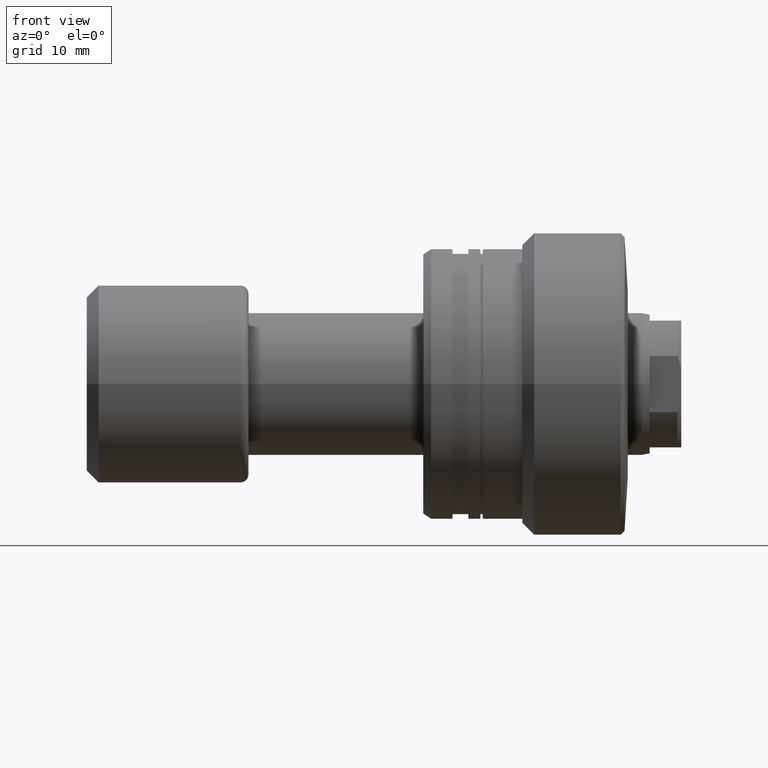
[diagram: clean part render]
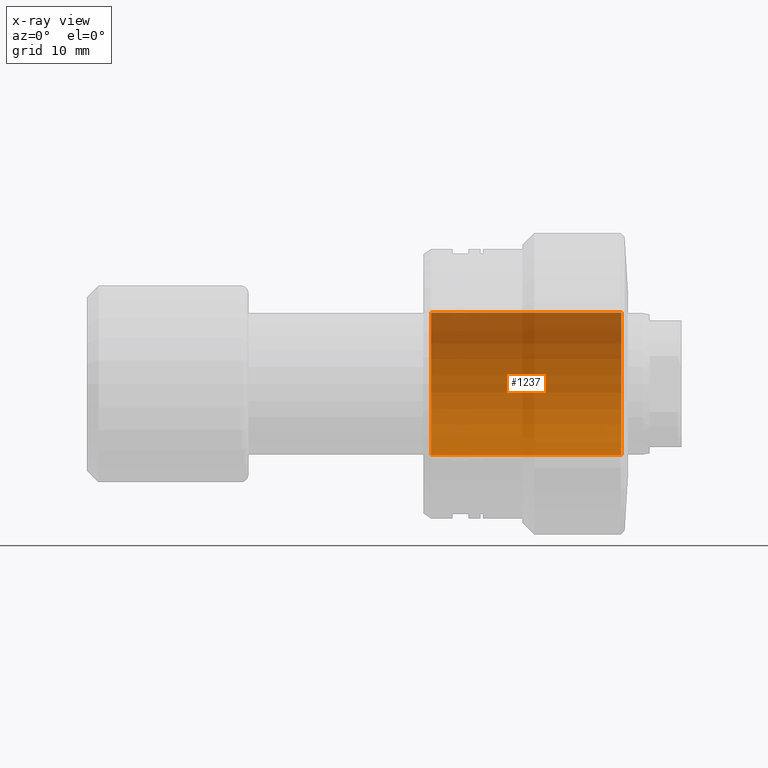
[diagram: x-ray — body ghosted, one internal face saturated and labeled with its STEP entity id]
A machine part, front view, then the same camera in x-ray: the body is ghosted and one INTERNAL B-rep face — a face not visible from any outside direction — is saturated and labeled: STEP entity #1237.
In plain terms, the highlighted cylindrical surface (partial cylindrical patch) has radius 9 mm, axis along (1, 0, 0).
Its self-contained STEP definition (entity closure, byte-faithful):
#62 = CARTESIAN_POINT ( 'NONE',  ( -51.95584412271570329, 1.102182119232617517E-15, 9.000000000000000000 ) ) ;
#146 = ORIENTED_EDGE ( 'NONE', *, *, #806, .T. ) ;
#181 = DIRECTION ( 'NONE',  ( 1.000000000000000000, -0.000000000000000000, -0.000000000000000000 ) ) ;
#213 = AXIS2_PLACEMENT_3D ( 'NONE', #537, #181, #2238 ) ;
#258 = DIRECTION ( 'NONE',  ( 1.000000000000000000, 0.000000000000000000, 0.000000000000000000 ) ) ;
#322 = VECTOR ( 'NONE', #1353, 1000.000000000000000 ) ;
#454 = DIRECTION ( 'NONE',  ( 0.000000000000000000, 0.000000000000000000, -1.000000000000000000 ) ) ;
#537 = CARTESIAN_POINT ( 'NONE',  ( -51.95584412271570329, 0.000000000000000000, 0.000000000000000000 ) ) ;
#556 = EDGE_CURVE ( 'NONE', #2329, #1082, #1070, .T. ) ;
#559 = EDGE_CURVE ( 'NONE', #1894, #1082, #1776, .T. ) ;
#806 = EDGE_CURVE ( 'NONE', #890, #2329, #2321, .T. ) ;
#890 = VERTEX_POINT ( 'NONE', #1292 ) ;
#1070 = CIRCLE ( 'NONE', #2249, 9.000000000000000000 ) ;
#1082 = VERTEX_POINT ( 'NONE', #1645 ) ;
#1119 = CYLINDRICAL_SURFACE ( 'NONE', #213, 9.000000000000000000 ) ;
#1125 = ORIENTED_EDGE ( 'NONE', *, *, #1932, .T. ) ;
#1165 = DIRECTION ( 'NONE',  ( 0.000000000000000000, 0.000000000000000000, 1.000000000000000000 ) ) ;
#1191 = CIRCLE ( 'NONE', #2297, 9.000000000000000000 ) ;
#1237 = ADVANCED_FACE ( 'NONE', ( #1676 ), #1119, .F. ) ;
#1292 = CARTESIAN_POINT ( 'NONE',  ( -25.50000000000003197, 0.000000000000000000, -9.000000000000000000 ) ) ;
#1353 = DIRECTION ( 'NONE',  ( 1.000000000000000000, -0.000000000000000000, -0.000000000000000000 ) ) ;
#1368 = CARTESIAN_POINT ( 'NONE',  ( -25.50000000000003197, 1.102182119232617517E-15, 9.000000000000000000 ) ) ;
#1373 = ORIENTED_EDGE ( 'NONE', *, *, #556, .T. ) ;
#1588 = DIRECTION ( 'NONE',  ( 1.000000000000000000, -0.000000000000000000, -0.000000000000000000 ) ) ;
#1645 = CARTESIAN_POINT ( 'NONE',  ( -1.500000000000000000, 1.102182119232617517E-15, 9.000000000000000000 ) ) ;
#1676 = FACE_OUTER_BOUND ( 'NONE', #2173, .T. ) ;
#1736 = CARTESIAN_POINT ( 'NONE',  ( -1.500000000000000000, 0.000000000000000000, -9.000000000000000000 ) ) ;
#1755 = VECTOR ( 'NONE', #1588, 1000.000000000000000 ) ;
#1769 = DIRECTION ( 'NONE',  ( -1.000000000000000000, -0.000000000000000000, -0.000000000000000000 ) ) ;
#1776 = LINE ( 'NONE', #62, #322 ) ;
#1894 = VERTEX_POINT ( 'NONE', #1368 ) ;
#1932 = EDGE_CURVE ( 'NONE', #1894, #890, #1191, .T. ) ;
#1958 = CARTESIAN_POINT ( 'NONE',  ( -51.95584412271570329, 0.000000000000000000, -9.000000000000000000 ) ) ;
#2059 = ORIENTED_EDGE ( 'NONE', *, *, #559, .F. ) ;
#2173 = EDGE_LOOP ( 'NONE', ( #2059, #1125, #146, #1373 ) ) ;
#2238 = DIRECTION ( 'NONE',  ( 0.000000000000000000, 0.000000000000000000, -1.000000000000000000 ) ) ;
#2249 = AXIS2_PLACEMENT_3D ( 'NONE', #2295, #258, #454 ) ;
#2295 = CARTESIAN_POINT ( 'NONE',  ( -1.500000000000000000, 0.000000000000000000, 0.000000000000000000 ) ) ;
#2297 = AXIS2_PLACEMENT_3D ( 'NONE', #2347, #1769, #1165 ) ;
#2321 = LINE ( 'NONE', #1958, #1755 ) ;
#2329 = VERTEX_POINT ( 'NONE', #1736 ) ;
#2347 = CARTESIAN_POINT ( 'NONE',  ( -25.50000000000003197, 0.000000000000000000, 0.000000000000000000 ) ) ;